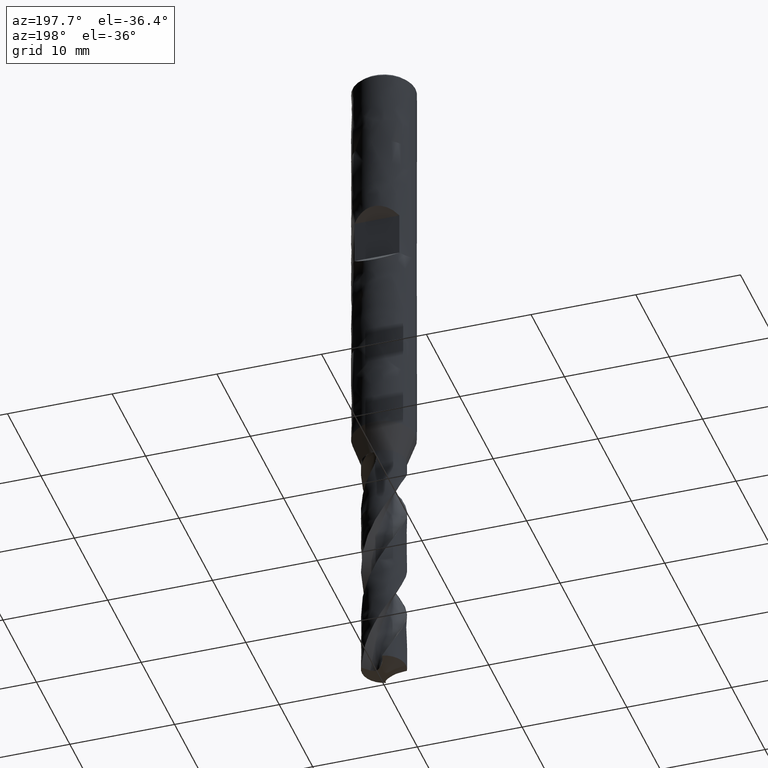
[diagram: clean part render]
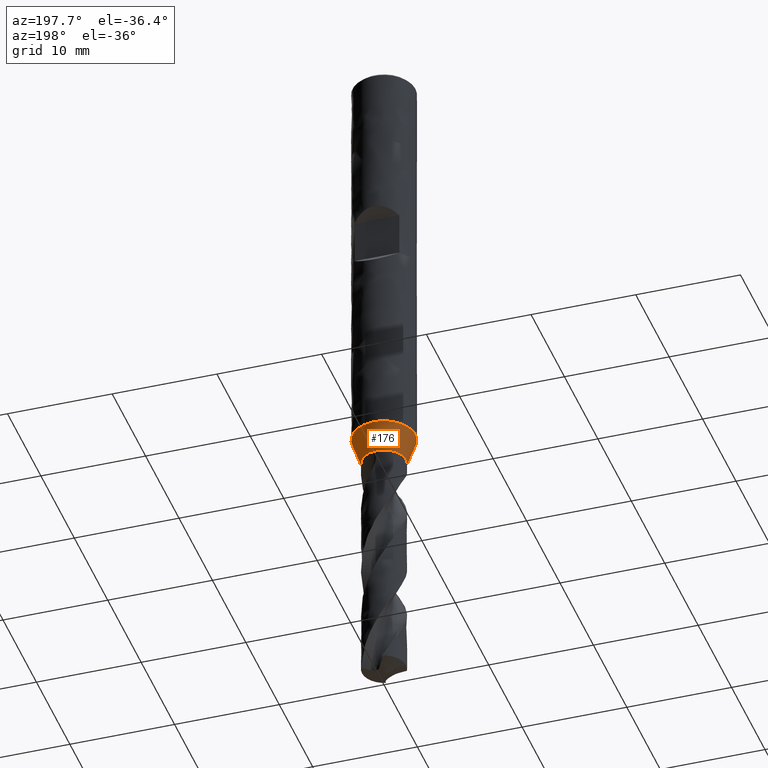
[diagram: same view with one face highlighted and labeled with its STEP entity id]
A machine part, auxiliary view. The second image highlights one B-rep face of the part: STEP entity #176.
In plain terms, the highlighted face is a freeform B-spline surface patch.
Its self-contained STEP definition (entity closure, byte-faithful):
#75 = VERTEX_POINT('', #76);
#76 = CARTESIAN_POINT('', (-0.864045133811129, -1.91400783873455, -42.));
#122 = EDGE_CURVE('', #75, #123, #125, .T.);
#123 = VERTEX_POINT('', #124);
#124 = CARTESIAN_POINT('', (-2.1, 2.70034619211991E-15, -42.));
#125 = CIRCLE('', #126, 2.1);
#126 = AXIS2_PLACEMENT_3D('', #127, #128, #129);
#127 = CARTESIAN_POINT('', (1.57474777179495E-31, 2.57175827820944E-15, -42.));
#128 = DIRECTION('', (3.74939945665464E-33, 6.12323399573677E-17, -1.));
#129 = DIRECTION('', (-1., 6.12323399573677E-17, 0.));
#176 = ADVANCED_FACE('', (#177), #282, .T.);
#177 = FACE_OUTER_BOUND('', #178, .T.);
#178 = EDGE_LOOP('', (#179, #193, #202, #217, #225, #237, #244, #252, #259, #260, #261, #276));
#179 = ORIENTED_EDGE('', *, *, #180, .T.);
#180 = EDGE_CURVE('', #181, #183, #185, .T.);
#181 = VERTEX_POINT('', #182);
#182 = CARTESIAN_POINT('', (-0.721136271946799, -1.97958167424986, -41.98));
#183 = VERTEX_POINT('', #184);
#184 = CARTESIAN_POINT('', (-0.593214891550854, -2.01447166583258, -42.));
#185 = B_SPLINE_CURVE_WITH_KNOTS('', 3, (#186, #187, #188, #189, #190, #191, #192), .UNSPECIFIED., .F., .U., (4, 3, 4), (0., 0.0878009510418395, 0.134603453086585), .UNSPECIFIED.);
#186 = CARTESIAN_POINT('', (-0.721136271945088, -1.97958167425048, -41.98));
#187 = CARTESIAN_POINT('', (-0.693631342869167, -1.98958331164161, -41.9800495962312));
#188 = CARTESIAN_POINT('', (-0.665423836565495, -1.99827662496402, -41.9825700610226));
#189 = CARTESIAN_POINT('', (-0.63753356388082, -2.00511722989757, -41.9882176399268));
#190 = CARTESIAN_POINT('', (-0.622666588878111, -2.00876363033618, -41.9912280950537));
#191 = CARTESIAN_POINT('', (-0.60781558325296, -2.01190514273521, -41.9951400840572));
#192 = CARTESIAN_POINT('', (-0.593214891550846, -2.01447166583259, -42.));
#193 = ORIENTED_EDGE('', *, *, #194, .F.);
#194 = EDGE_CURVE('', #195, #183, #197, .T.);
#195 = VERTEX_POINT('', #196);
#196 = CARTESIAN_POINT('', (0.864045133811133, 1.91400783873455, -42.));
#197 = CIRCLE('', #198, 2.1);
#198 = AXIS2_PLACEMENT_3D('', #199, #200, #201);
#199 = CARTESIAN_POINT('', (1.57474777179495E-31, 2.57175827820944E-15, -42.));
#200 = DIRECTION('', (3.74939945665464E-33, 6.12323399573677E-17, -1.));
#201 = DIRECTION('', (-1., 6.12323399573677E-17, 0.));
#202 = ORIENTED_EDGE('', *, *, #203, .F.);
#203 = EDGE_CURVE('', #204, #195, #206, .T.);
#204 = VERTEX_POINT('', #205);
#205 = CARTESIAN_POINT('', (0.722813576291031, 1.97896984860118, -41.98));
#206 = B_SPLINE_CURVE_WITH_KNOTS('', 3, (#207, #208, #209, #210, #211, #212, #213, #214, #215, #216), .UNSPECIFIED., .F., .U., (4, 3, 3, 4), (0., 0.0881396208913765, 0.14655030433623, 0.157114428138972), .UNSPECIFIED.);
#207 = CARTESIAN_POINT('', (0.722813576299619, 1.97896984859805, -41.98));
#208 = CARTESIAN_POINT('', (0.750404405804281, 1.96887427369636, -41.9800496909525));
#209 = CARTESIAN_POINT('', (0.777564282523738, 1.95738300211154, -41.9825461931863));
#210 = CARTESIAN_POINT('', (0.803830741102255, 1.94493931706285, -41.9868362783479));
#211 = CARTESIAN_POINT('', (0.821237689098298, 1.93669280838813, -41.9896793448802));
#212 = CARTESIAN_POINT('', (0.83832161795045, 1.92799829475506, -41.9933203244043));
#213 = CARTESIAN_POINT('', (0.855020471906068, 1.91895162431172, -41.9976093571186));
#214 = CARTESIAN_POINT('', (0.858040617368286, 1.91731544851425, -41.9983850691959));
#215 = CARTESIAN_POINT('', (0.861048920434352, 1.9156673570035, -41.9991822080975));
#216 = CARTESIAN_POINT('', (0.864045133811122, 1.91400783873456, -42.));
#217 = ORIENTED_EDGE('', *, *, #218, .F.);
#218 = EDGE_CURVE('', #219, #204, #221, .T.);
#219 = VERTEX_POINT('', #220);
#220 = CARTESIAN_POINT('', (0.721136271945863, 1.9795816742502, -41.98));
#221 = LINE('', #222, #223);
#222 = CARTESIAN_POINT('', (0.721136271945863, 1.9795816742502, -41.98));
#223 = VECTOR('', #224, 0.00178540765404388);
#224 = DIRECTION('', (0.00167730434516777, -0.000611825649020847, 0.));
#225 = ORIENTED_EDGE('', *, *, #226, .T.);
#226 = EDGE_CURVE('', #219, #227, #229, .T.);
#227 = VERTEX_POINT('', #228);
#228 = CARTESIAN_POINT('', (0.593214891550843, 2.01447166583259, -42.));
#229 = B_SPLINE_CURVE_WITH_KNOTS('', 3, (#230, #231, #232, #233, #234, #235, #236), .UNSPECIFIED., .F., .U., (4, 3, 4), (0., 0.0878009510418324, 0.134603453082699), .UNSPECIFIED.);
#230 = CARTESIAN_POINT('', (0.721136271941431, 1.97958167425182, -41.98));
#231 = CARTESIAN_POINT('', (0.693631342865468, 1.98958331164283, -41.9800495962315));
#232 = CARTESIAN_POINT('', (0.665423836561771, 1.9982766249651, -41.9825700610231));
#233 = CARTESIAN_POINT('', (0.637533563877114, 2.00511722989849, -41.9882176399275));
#234 = CARTESIAN_POINT('', (0.622666588875647, 2.00876363033671, -41.9912280950543));
#235 = CARTESIAN_POINT('', (0.60781558325175, 2.01190514273543, -41.9951400840576));
#236 = CARTESIAN_POINT('', (0.593214891550846, 2.01447166583259, -42.));
#237 = ORIENTED_EDGE('', *, *, #238, .F.);
#238 = EDGE_CURVE('', #123, #227, #239, .T.);
#239 = CIRCLE('', #240, 2.1);
#240 = AXIS2_PLACEMENT_3D('', #241, #242, #243);
#241 = CARTESIAN_POINT('', (1.57474777179495E-31, 2.57175827820944E-15, -42.));
#242 = DIRECTION('', (3.74939945665464E-33, 6.12323399573677E-17, -1.));
#243 = DIRECTION('', (-1., 6.12323399573677E-17, 0.));
#244 = ORIENTED_EDGE('', *, *, #245, .F.);
#245 = EDGE_CURVE('', #246, #123, #248, .T.);
#246 = VERTEX_POINT('', #247);
#247 = CARTESIAN_POINT('', (-3., 2.59435301165371E-15, -39.369));
#248 = LINE('', #249, #250);
#249 = CARTESIAN_POINT('', (-3., 2.59435301165371E-15, -39.369));
#250 = VECTOR('', #251, 2.78067635657226);
#251 = DIRECTION('', (0.9, 1.05993180466204E-16, -2.631));
#252 = ORIENTED_EDGE('', *, *, #253, .T.);
#253 = EDGE_CURVE('', #246, #246, #254, .T.);
#254 = CIRCLE('', #255, 3.);
#255 = AXIS2_PLACEMENT_3D('', #256, #257, #258);
#256 = CARTESIAN_POINT('', (1.47610107209037E-31, 2.41065599178161E-15, -39.369));
#257 = DIRECTION('', (3.74939945665464E-33, 6.12323399573677E-17, -1.));
#258 = DIRECTION('', (-1., 6.12323399573677E-17, 0.));
#259 = ORIENTED_EDGE('', *, *, #245, .T.);
#260 = ORIENTED_EDGE('', *, *, #122, .F.);
#261 = ORIENTED_EDGE('', *, *, #262, .F.);
#262 = EDGE_CURVE('', #263, #75, #265, .T.);
#263 = VERTEX_POINT('', #264);
#264 = CARTESIAN_POINT('', (-0.722813576290096, -1.97896984860152, -41.98));
#265 = B_SPLINE_CURVE_WITH_KNOTS('', 3, (#266, #267, #268, #269, #270, #271, #272, #273, #274, #275), .UNSPECIFIED., .F., .U., (4, 3, 3, 4), (0., 0.0881396208913874, 0.146550304336244, 0.157114428140521), .UNSPECIFIED.);
#266 = CARTESIAN_POINT('', (-0.722813576298174, -1.97896984859857, -41.98));
#267 = CARTESIAN_POINT('', (-0.750404405802857, -1.96887427369692, -41.9800496909524));
#268 = CARTESIAN_POINT('', (-0.777564282522344, -1.95738300211215, -41.9825461931861));
#269 = CARTESIAN_POINT('', (-0.803830741100891, -1.94493931706349, -41.9868362783477));
#270 = CARTESIAN_POINT('', (-0.821237689096953, -1.93669280838879, -41.9896793448799));
#271 = CARTESIAN_POINT('', (-0.838321617949124, -1.92799829475575, -41.993320324404));
#272 = CARTESIAN_POINT('', (-0.855020471904761, -1.91895162431242, -41.9976093571183));
#273 = CARTESIAN_POINT('', (-0.858040617367422, -1.91731544851472, -41.9983850691957));
#274 = CARTESIAN_POINT('', (-0.861048920433929, -1.91566735700373, -41.9991822080973));
#275 = CARTESIAN_POINT('', (-0.864045133811134, -1.91400783873455, -42.));
#276 = ORIENTED_EDGE('', *, *, #277, .F.);
#277 = EDGE_CURVE('', #181, #263, #278, .T.);
#278 = LINE('', #279, #280);
#279 = CARTESIAN_POINT('', (-0.721136271946799, -1.97958167424986, -41.98));
#280 = VECTOR('', #281, 0.00178540765205304);
#281 = DIRECTION('', (-0.00167730434329727, 0.00061182564833917, 0.));
#282 = (
   BOUNDED_SURFACE ()
   B_SPLINE_SURFACE (2, 1, ((#283, #284), (#285, #286), (#287, #288), (#289, #290), (#291, #292), (#293, #294), (#295, #296), (#297, #298), (#299, #300)), .UNSPECIFIED., .T., .F., .U.)
   B_SPLINE_SURFACE_WITH_KNOTS ((3, 2, 2, 2, 3), (2, 2), (0., 0.25, 0.5, 0.75, 1.), (0., 1.), .UNSPECIFIED.)
   GEOMETRIC_REPRESENTATION_ITEM ()
   RATIONAL_B_SPLINE_SURFACE (((1., 1.), (0.707106781186548, 0.707106781186548), (1., 1.), (0.707106781186548, 0.707106781186548), (1., 1.), (0.707106781186548, 0.707106781186548), (1., 1.), (0.707106781186548, 0.707106781186548), (1., 1.)))
   REPRESENTATION_ITEM ('')
   SURFACE ()
);
#283 = CARTESIAN_POINT('', (-3., 2.59435301165371E-15, -39.369));
#284 = CARTESIAN_POINT('', (-2.1, 2.70034619211991E-15, -42.));
#285 = CARTESIAN_POINT('', (-3., 3., -39.369));
#286 = CARTESIAN_POINT('', (-2.1, 2.1, -42.));
#287 = CARTESIAN_POINT('', (1.4791141972894E-31, 3., -39.369));
#288 = CARTESIAN_POINT('', (1.4791141972894E-31, 2.1, -42.));
#289 = CARTESIAN_POINT('', (3., 3., -39.369));
#290 = CARTESIAN_POINT('', (2.1, 2.1, -42.));
#291 = CARTESIAN_POINT('', (3., 2.59435301165371E-15, -39.369));
#292 = CARTESIAN_POINT('', (2.1, 2.70034619211991E-15, -42.));
#293 = CARTESIAN_POINT('', (3., -3., -39.369));
#294 = CARTESIAN_POINT('', (2.1, -2.1, -42.));
#295 = CARTESIAN_POINT('', (3.67394039744206E-16, -3., -39.369));
#296 = CARTESIAN_POINT('', (2.57175827820944E-16, -2.1, -42.));
#297 = CARTESIAN_POINT('', (-3., -3., -39.369));
#298 = CARTESIAN_POINT('', (-2.1, -2.1, -42.));
#299 = CARTESIAN_POINT('', (-3., 2.59435301165371E-15, -39.369));
#300 = CARTESIAN_POINT('', (-2.1, 2.70034619211991E-15, -42.));